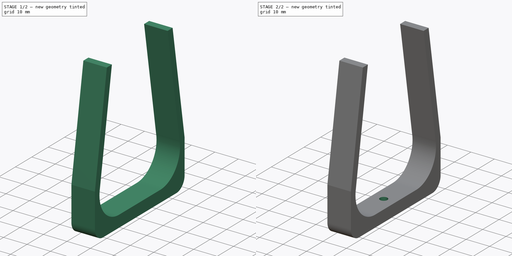
[diagram: build sequence overview — one tinted view per stage of 2, left to right]
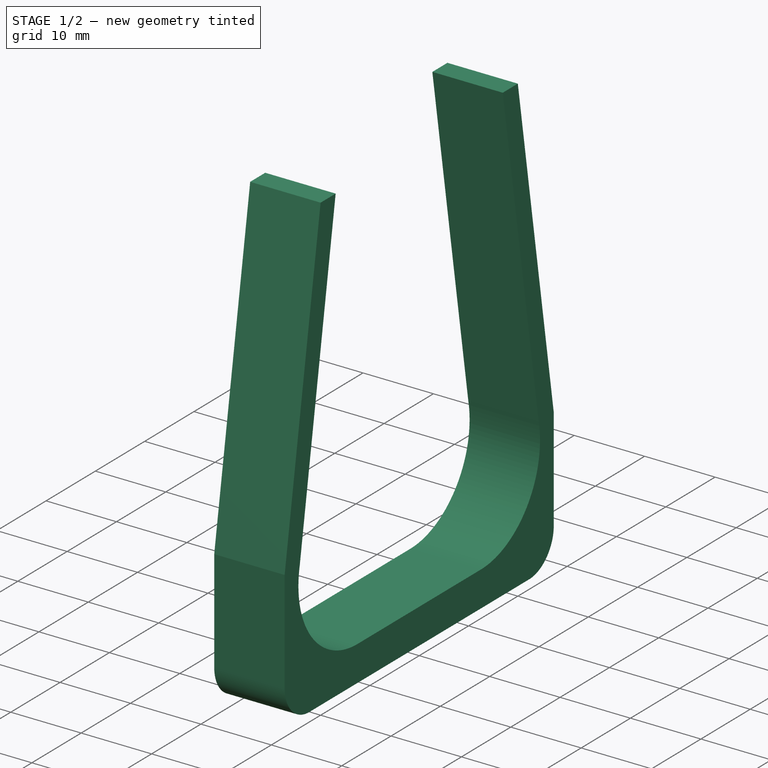
[diagram: stage 1 of 2 — iso view after this stage's code; geometry added in this stage tinted green]
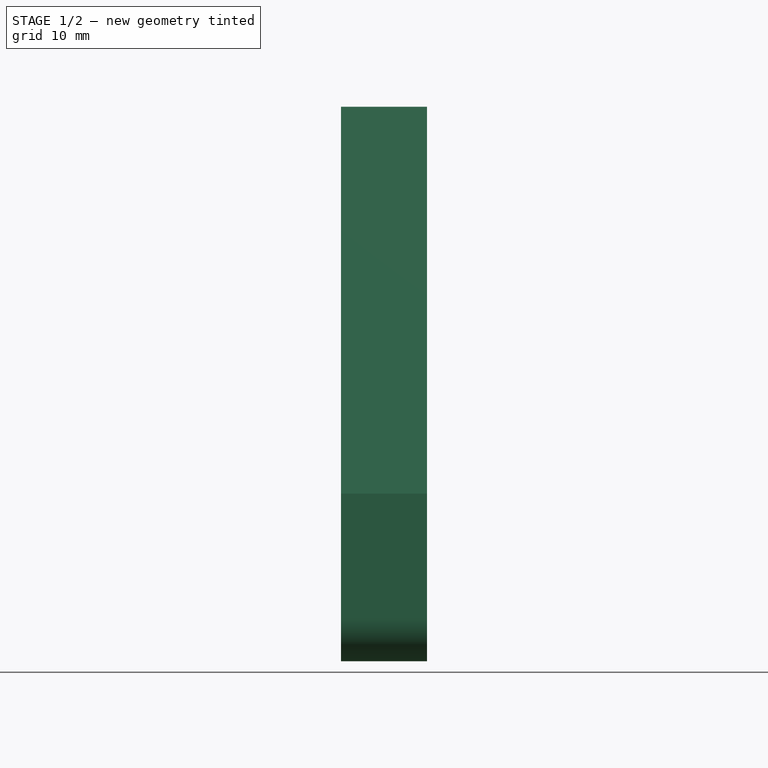
[diagram: stage 1 of 2 — front view after this stage's code; geometry added in this stage tinted green]
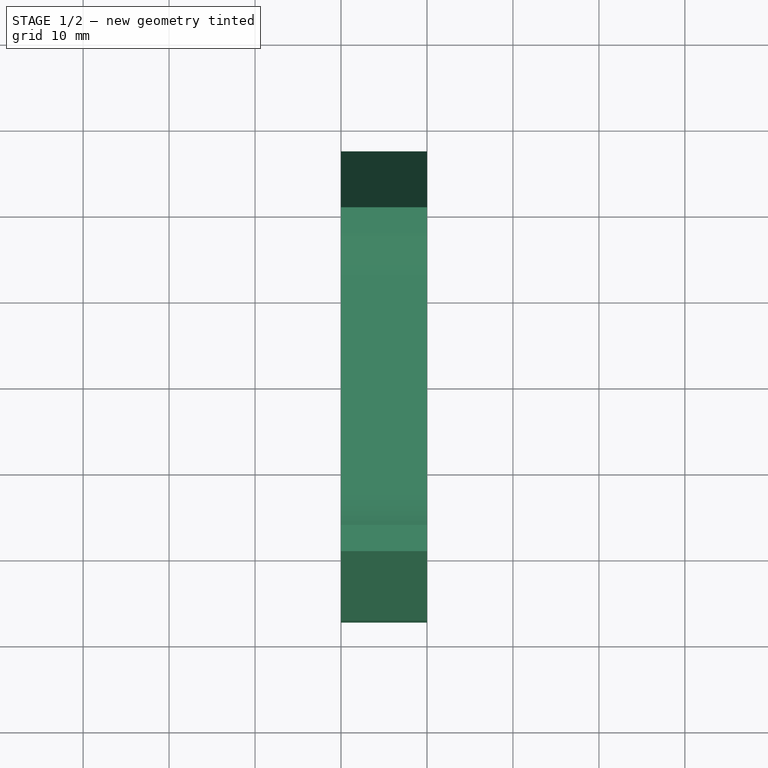
[diagram: stage 1 of 2 — top view after this stage's code; geometry added in this stage tinted green]
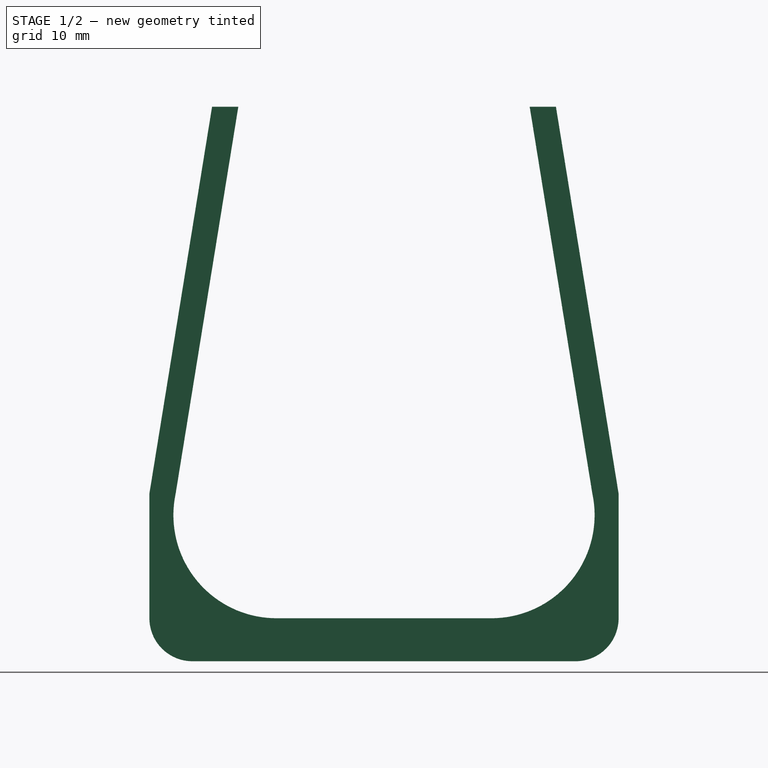
[diagram: stage 1 of 2 — right view after this stage's code; geometry added in this stage tinted green]
FCSTD DOCUMENT  (FreeCAD 0.19R24291 (Git))
Label: prt_support_batterie_double
License: All rights reserved
LicenseURL: http://en.wikipedia.org/wiki/All_rights_reserved
objects: Sketcher::SketchObject×2, PartDesign::Pad×1, PartDesign::Fillet×1, PartDesign::Pocket×1, PartDesign::Body×1
note: 9 computed .brp shape members not serialized (recipe doc carries the construction recipe); baked Part::Feature solids carry a one-line shape summary decoded from their .brp

FEATURE [Sketcher::SketchObject] Sketch
  FullyConstrained = false
  MapMode = 5
  Placement = pos=(0,0,0) rot=(0.57735,0.57735,0.57735;2.0944rad)
  Support = -> [YZ_Plane]
  sketch-geometry (22):
    g0: LineSegment StartX=-12.5 StartY=-14.5 StartZ=0 EndX=12.5 EndY=-14.5 EndZ=0
    g1: ArcOfCircle CenterX=12.5 CenterY=-2.5 CenterZ=0 NormalX=0 NormalY=0 NormalZ=1 AngleXU=0 Radius=12 StartAngle=4.71239 EndAngle=6.49306
    g2: ArcOfCircle CenterX=-12.5 CenterY=-2.5 CenterZ=0 NormalX=0 NormalY=0 NormalZ=1 AngleXU=0 Radius=12 StartAngle=2.93172 EndAngle=4.71239
    g3: LineSegment StartX=-12.5 StartY=-2.5 StartZ=0 EndX=12.5 EndY=-2.5 EndZ=0
    g4: GeomPoint X=0 Y=-2.5 Z=0
    g5: LineSegment StartX=-12.8907 StartY=-17.4949 StartZ=0 EndX=12.8907 EndY=-17.4949 EndZ=0
    g6: ArcOfCircle CenterX=-12.5 CenterY=-2.5 CenterZ=0 NormalX=0 NormalY=0 NormalZ=1 AngleXU=0 Radius=15 StartAngle=2.97414 EndAngle=4.68634
    g7: ArcOfCircle CenterX=12.5 CenterY=-2.5 CenterZ=0 NormalX=0 NormalY=0 NormalZ=1 AngleXU=0 Radius=15 StartAngle=4.73844 EndAngle=6.45063
    g8: GeomPoint X=0 Y=-17.4949 Z=0
    g9: LineSegment StartX=-27.2902 StartY=0 StartZ=0 EndX=-20 EndY=45 EndZ=0
    g10: LineSegment StartX=-24.2367 StartY=0 StartZ=0 EndX=-16.9465 EndY=45 EndZ=0
    g11: LineSegment StartX=24.2367 StartY=0 StartZ=0 EndX=16.9465 EndY=45 EndZ=0
    g12: LineSegment StartX=27.2902 StartY=0 StartZ=0 EndX=20 EndY=45 EndZ=0
    g13: LineSegment StartX=-16.9465 StartY=45 StartZ=0 EndX=16.9465 EndY=45 EndZ=0
    g14: LineSegment StartX=-20 StartY=45 StartZ=0 EndX=20 EndY=45 EndZ=0
    g15: GeomPoint X=0 Y=45 Z=0
    g16: GeomPoint X=0 Y=45 Z=0
    g17: LineSegment StartX=-20 StartY=45 StartZ=0 EndX=-16.9465 EndY=45 EndZ=0
    g18: LineSegment StartX=16.9465 StartY=45 StartZ=0 EndX=20 EndY=45 EndZ=0
    g19: LineSegment StartX=-27.2902 StartY=0 StartZ=0 EndX=-27.2902 EndY=-19.5 EndZ=0
    g20: LineSegment StartX=-27.2902 StartY=-19.5 StartZ=0 EndX=27.2902 EndY=-19.5 EndZ=0
    g21: LineSegment StartX=27.2902 StartY=-19.5 StartZ=0 EndX=27.2902 EndY=0 EndZ=0
  constraints (56):
    c: Horizontal(g0)
    c: Vertical(g0,g1)
    c: Coincident(g2,g0)
    c: Vertical(g0,g2)
    c: Horizontal(g1,g2)
    c: Radius(g2) = 12
    c: DistanceX(g0,g0) = 25
    c: Coincident(g1,g0)
    c: DistanceY(g2,g2) = 2.5
    c: Horizontal(g1,g2)
    c: PointOnObject(g2,g-1)
    c: Coincident(g3,g2)
    c: Coincident(g3,g1)
    c: PointOnObject(g4,g-2)
    c: Symmetric(g2,g1,g4)
    c: Horizontal(g5)
    c: Coincident(g6,g5)
    c: Radius(g6) = 15
    c: Coincident(g7,g1)
    c: Coincident(g7,g5)
    c: Equal(g7,g6)
    c: PointOnObject(g8,g-2)
    c: Symmetric(g5,g5,g8)
    c: Coincident(g9,g6)
    c: Coincident(g10,g2)
    c: Coincident(g11,g1)
    c: Coincident(g12,g7)
    c: Coincident(g13,g10)
    c: Coincident(g13,g11)
    c: Horizontal(g13)
    c: Coincident(g14,g9)
    c: Coincident(g14,g12)
    c: Horizontal(g14)
    c: Parallel(g10,g9)
    c: Parallel(g11,g12)
    c: PointOnObject(g15,g-2)
    c: Symmetric(g9,g12,g15)
    c: PointOnObject(g16,g-2)
    c: Symmetric(g10,g11,g16)
    c: DistanceX(g9,g12) = 40
    c: Coincident(g17,g9)
    c: Coincident(g17,g10)
    c: Coincident(g18,g11)
    c: Coincident(g18,g12)
    c: DistanceY(g-1,g16) = 45
    c: Coincident(g19,g6)
    c: Vertical(g19)
    c: Coincident(g20,g19)
    c: Horizontal(g20)
    c: Coincident(g21,g20)
    c: Vertical(g21)
    c: Coincident(g21,g7)
    c: Horizontal(g7,g6)
    c: Horizontal(g12,g11)
    c: DistanceY(g20,g0) = 5
    c: PointOnObject(g12,g-1)
FEATURE [PartDesign::Pad] Pad  label="Forme"
  Direction = (1,1,1)
  Length = 10
  Length2 = 100
  Placement = pos=(0,0,0) rot=(0.57735,0.57735,0.57735;2.0944rad)
  Profile = -> Sketch
  Type = 0
FEATURE [PartDesign::Fillet] Fillet  label="Corners"
  Base = -> Pad [Edge32,Edge29]
  BaseFeature = -> Pad
  Placement = pos=(0,0,0) rot=(0.57735,0.57735,0.57735;2.0944rad)
  Radius = 5
  SupportTransform = false
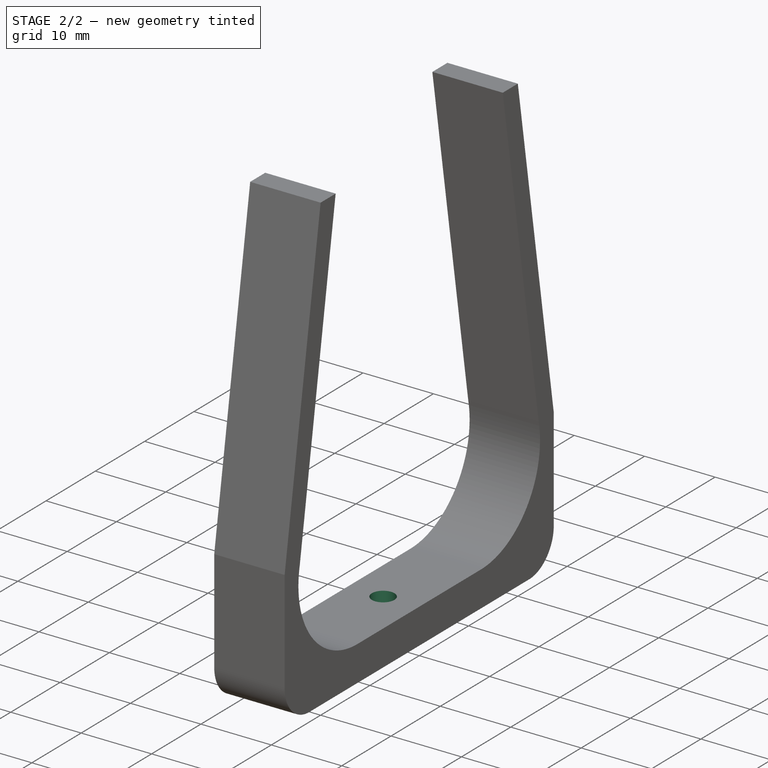
[diagram: stage 2 of 2 — iso view after this stage's code; geometry added in this stage tinted green]
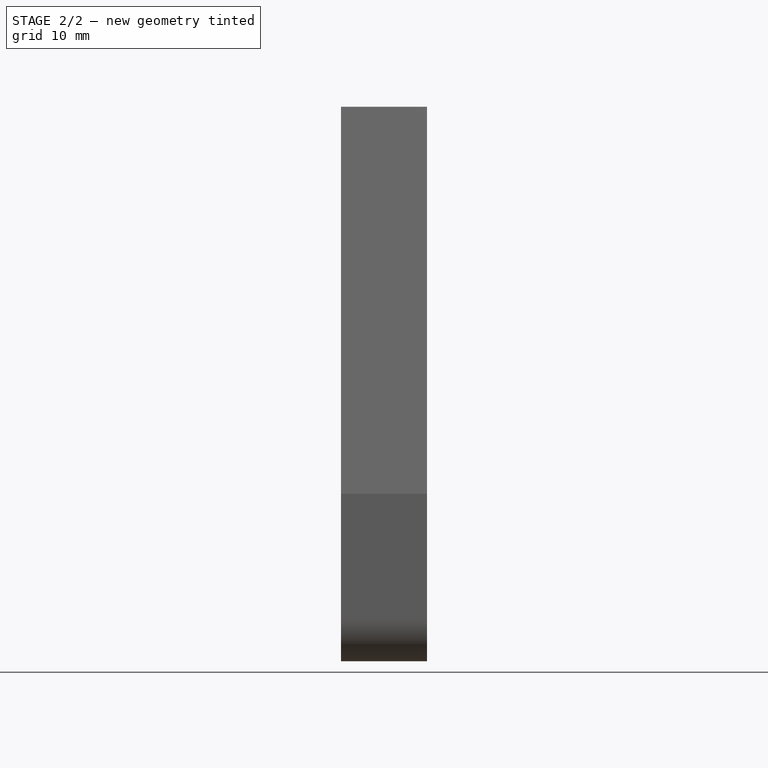
[diagram: stage 2 of 2 — front view after this stage's code; geometry added in this stage tinted green]
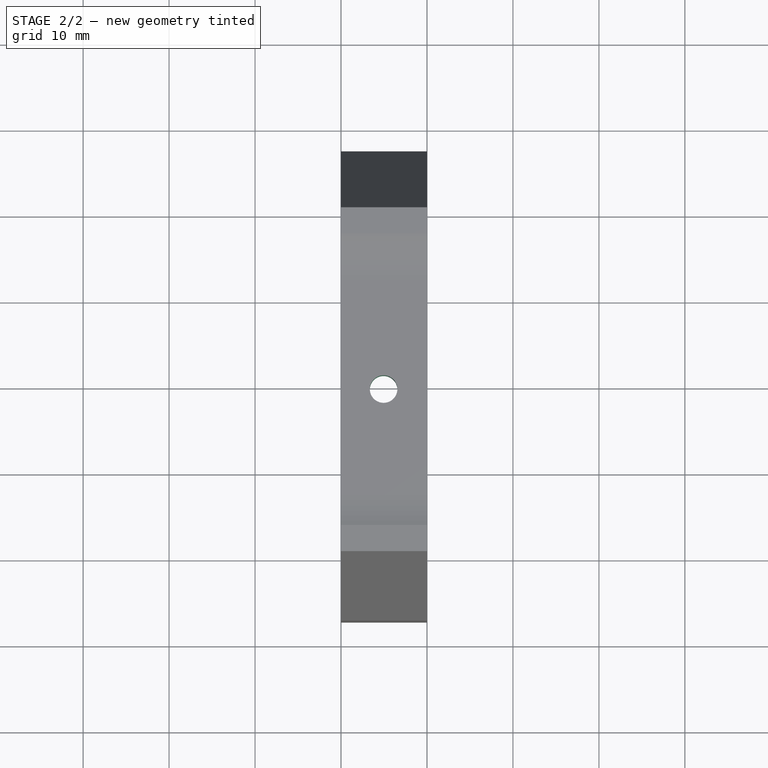
[diagram: stage 2 of 2 — top view after this stage's code; geometry added in this stage tinted green]
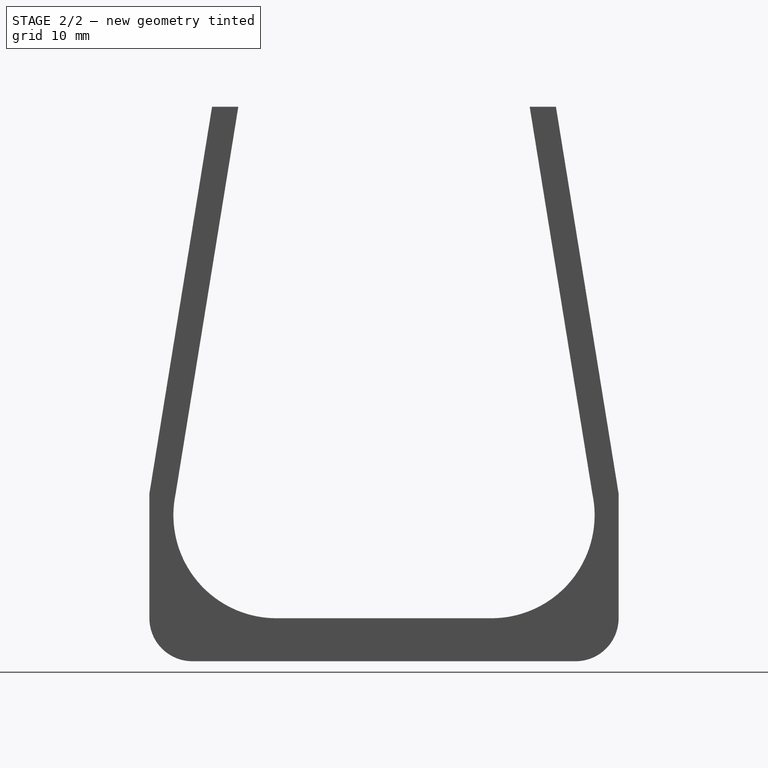
[diagram: stage 2 of 2 — right view after this stage's code; geometry added in this stage tinted green]
FEATURE [Sketcher::SketchObject] Sketch001
  ExternalGeometry = -> [Fillet]
  FullyConstrained = false
  MapMode = 5
  Placement = pos=(5.6e-15,-8e-15,-14.5) rot=(0,0,-1;1.5708rad)
  Support = -> [Fillet]
  sketch-geometry (4):
    g0: LineSegment StartX=12.5 StartY=2.7e-15 StartZ=0 EndX=-12.5 EndY=10 EndZ=0
    g1: LineSegment StartX=-12.5 StartY=2.7e-15 StartZ=0 EndX=12.5 EndY=10 EndZ=0
    g2: GeomPoint X=-3e-15 Y=5 Z=0
    g3: Circle CenterX=0.11428 CenterY=4.95429 CenterZ=0 NormalX=0 NormalY=0 NormalZ=1 AngleXU=0 Radius=1.6
  constraints (8):
    c: Coincident(g0,g-5)
    c: Coincident(g0,g-4)
    c: Coincident(g1,g-4)
    c: Coincident(g1,g-5)
    c: PointOnObject(g2,g0)
    c: PointOnObject(g2,g1)
    c: PointOnObject(g3,g0)
    c: Radius(g3) = 1.6
FEATURE [PartDesign::Pocket] Pocket  label="Fixation"
  BaseFeature = -> Fillet
  Length = 5
  Length2 = 100
  Placement = pos=(0,0,0) rot=(0.57735,0.57735,0.57735;2.0944rad)
  Profile = -> Sketch001
  Type = 1
FEATURE [PartDesign::Body] Body
  Group = -> [Sketch,Pad,Fillet,Sketch001,Pocket]
  Origin = -> Origin
  Tip = -> Pocket
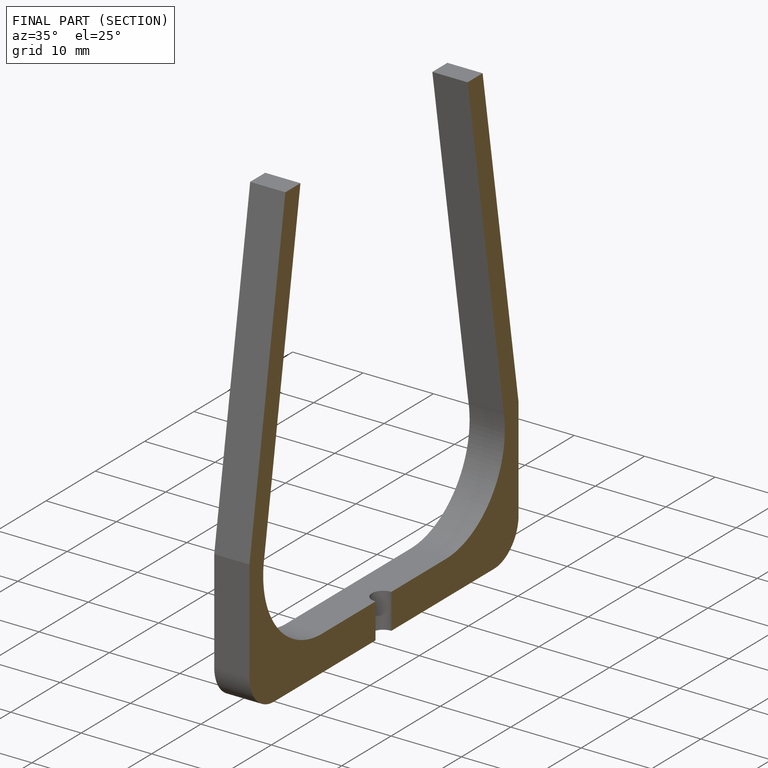
[diagram: finished part — half-section view (interior)]
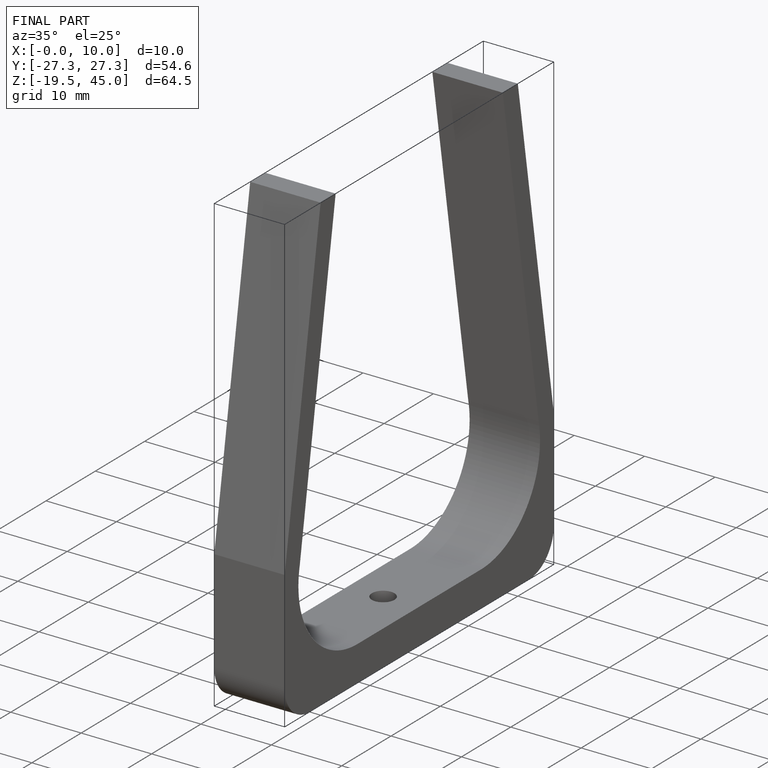
[diagram: finished part — iso view with bounding-box wireframe]
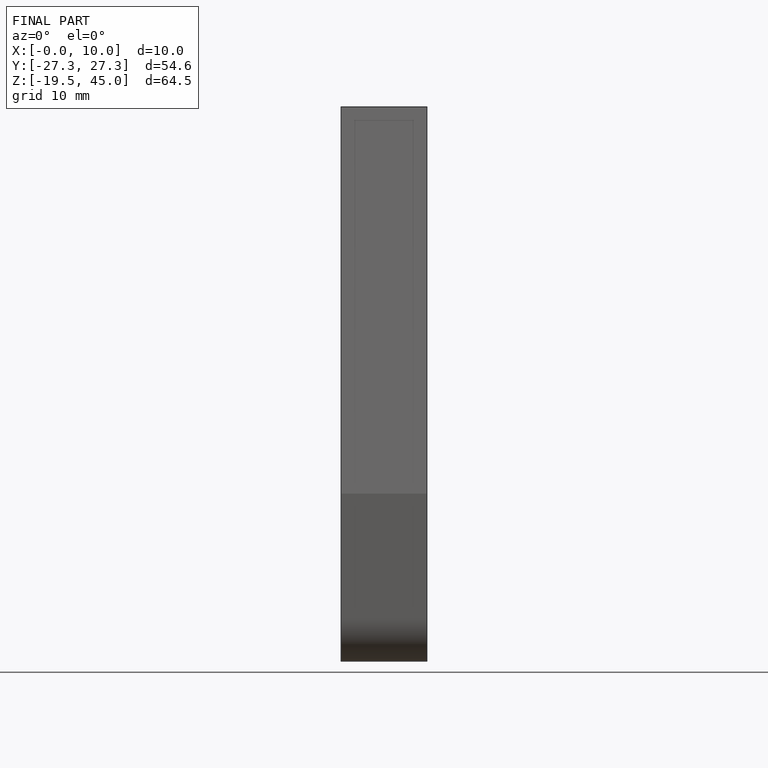
[diagram: finished part — front view with bounding-box wireframe]
